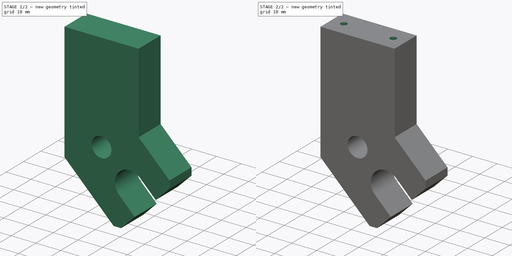
[diagram: build sequence overview — one tinted view per stage of 2, left to right]
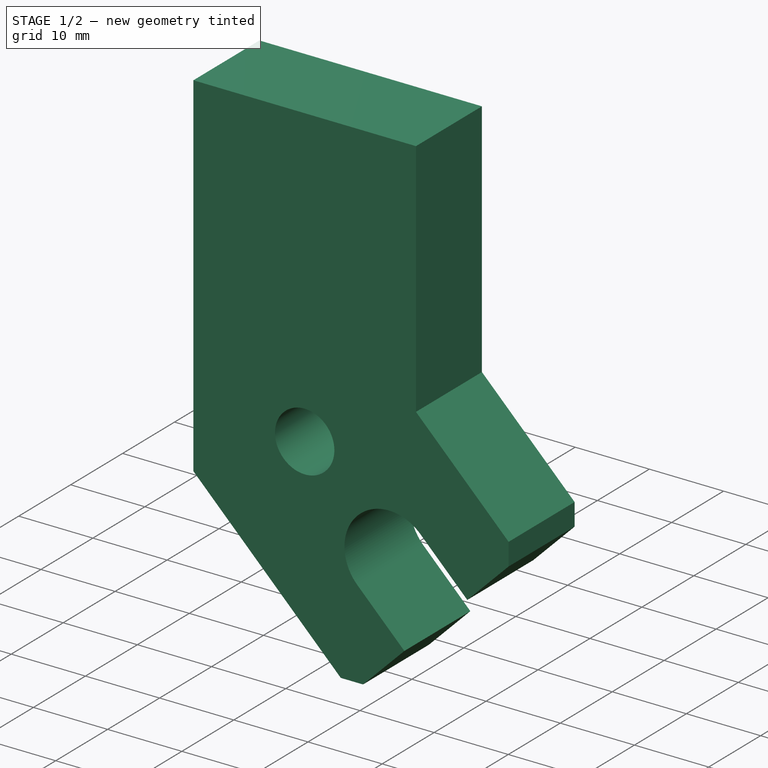
[diagram: stage 1 of 2 — iso view after this stage's code; geometry added in this stage tinted green]
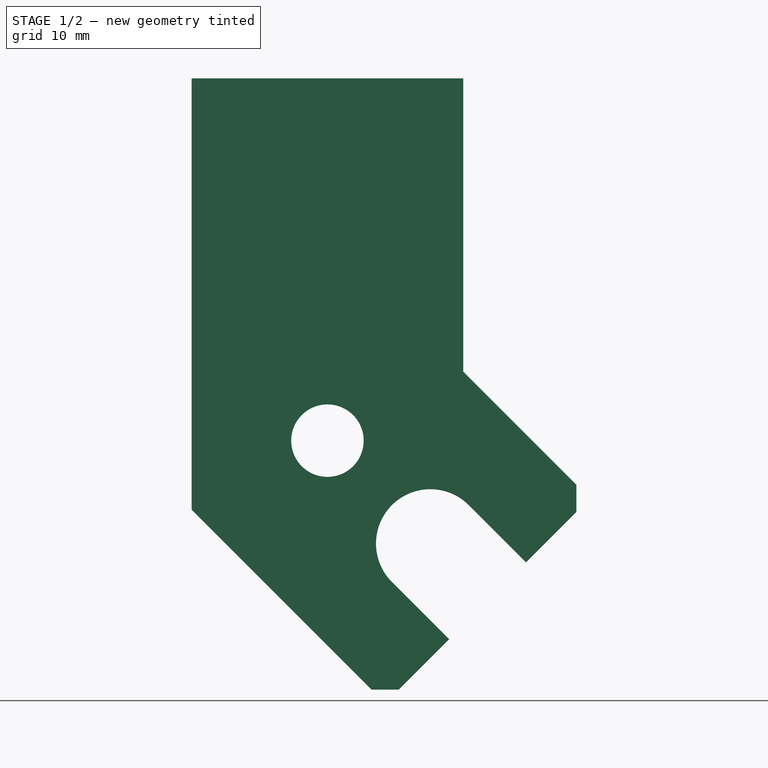
[diagram: stage 1 of 2 — front view after this stage's code; geometry added in this stage tinted green]
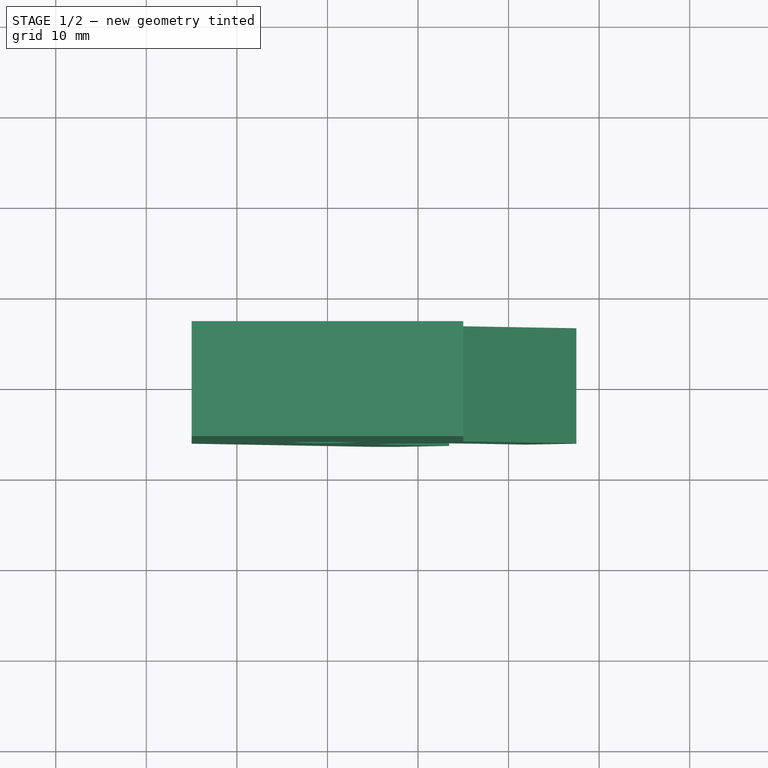
[diagram: stage 1 of 2 — top view after this stage's code; geometry added in this stage tinted green]
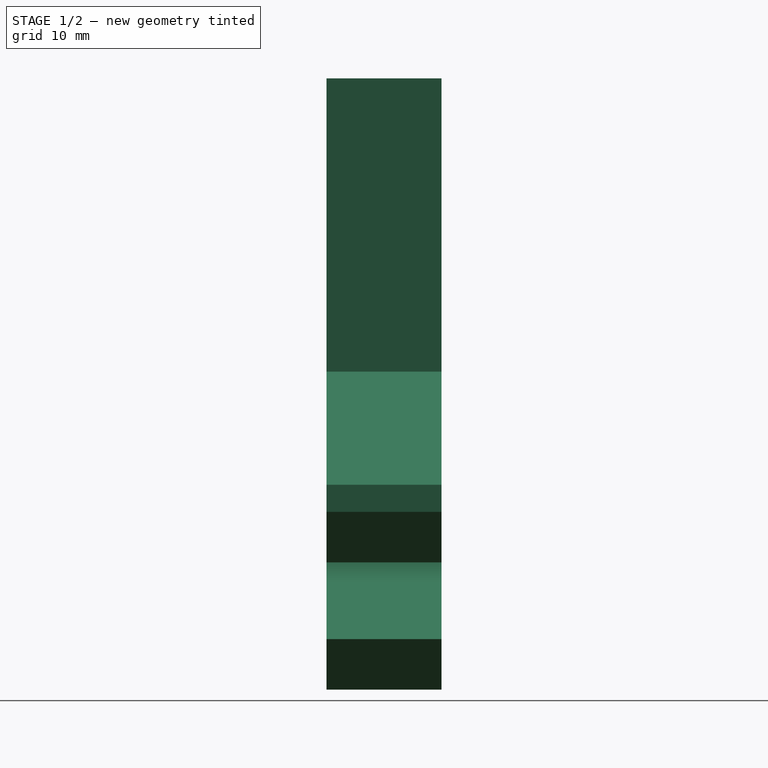
[diagram: stage 1 of 2 — right view after this stage's code; geometry added in this stage tinted green]
FCSTD DOCUMENT  (FreeCAD 0.21R33771 (Git))
Label: Alt Plate
License: All rights reserved
LicenseURL: http://en.wikipedia.org/wiki/All_rights_reserved
objects: PartDesign::CoordinateSystem×3, Sketcher::SketchObject×2, PartDesign::Pad×1, PartDesign::Hole×1, PartDesign::Body×1
note: 10 computed .brp shape members not serialized (recipe doc carries the construction recipe); baked Part::Feature solids carry a one-line shape summary decoded from their .brp

FEATURE [Sketcher::SketchObject] Sketch
  FullyConstrained = true
  MapMode = 5
  Placement = pos=(0,0,0) rot=(1,0,0;1.5708rad)
  Support = -> [XZ_Plane]
  sketch-geometry (19):
    g0: LineSegment StartX=-15 StartY=-7.62744 StartZ=0 EndX=-15 EndY=40 EndZ=0
    g1: LineSegment StartX=15 StartY=7.6274 StartZ=0 EndX=15 EndY=40 EndZ=0
    g2: LineSegment StartX=-15 StartY=40 StartZ=0 EndX=15 EndY=40 EndZ=0
    g3: Circle CenterX=0 CenterY=0 CenterZ=0 NormalX=0 NormalY=0 NormalZ=1 AngleXU=0 Radius=4
    g4: ArcOfCircle CenterX=11.363 CenterY=-11.363 CenterZ=0 NormalX=0 NormalY=0 NormalZ=1 AngleXU=0 Radius=6 StartAngle=0.785397 EndAngle=3.92699
    g5: LineSegment StartX=0 StartY=0 StartZ=0 EndX=17.6777 EndY=-17.6777 EndZ=0
    g6: LineSegment StartX=7.12034 StartY=-15.6056 StartZ=0 EndX=13.435 EndY=-21.9203 EndZ=0
    g7: LineSegment StartX=15.6056 StartY=-7.12035 StartZ=0 EndX=21.9203 EndY=-13.435 EndZ=0
    g8: Circle CenterX=0 CenterY=0 CenterZ=0 NormalX=0 NormalY=0 NormalZ=1 AngleXU=0 Radius=25
    g9: LineSegment StartX=13.435 StartY=-21.9203 StartZ=0 EndX=21.9203 EndY=-13.435 EndZ=0
    g10: LineSegment StartX=0 StartY=0 StartZ=0 EndX=-2.17889 EndY=-24.9049 EndZ=0
    g11: LineSegment StartX=0 StartY=0 StartZ=0 EndX=24.9049 EndY=2.17889 EndZ=0
    g12: LineSegment StartX=24.9049 StartY=2.17889 StartZ=0 EndX=-2.17889 EndY=-24.9049 EndZ=0
    g13: LineSegment StartX=15 StartY=7.6274 StartZ=0 EndX=27.4914 EndY=-4.86398 EndZ=0
    g14: LineSegment StartX=27.4914 StartY=-4.86398 StartZ=0 EndX=27.4914 EndY=-7.86398 EndZ=0
    g15: LineSegment StartX=27.4914 StartY=-7.86398 StartZ=0 EndX=21.9203 EndY=-13.435 EndZ=0
    g16: LineSegment StartX=13.435 StartY=-21.9203 StartZ=0 EndX=7.86394 EndY=-27.4914 EndZ=0
    g17: LineSegment StartX=7.86394 StartY=-27.4914 StartZ=0 EndX=4.86394 EndY=-27.4914 EndZ=0
    g18: LineSegment StartX=4.86394 StartY=-27.4914 StartZ=0 EndX=-15 EndY=-7.62744 EndZ=0
  constraints (51):
    c: Vertical(g0)
    c: Vertical(g1)
    c: Coincident(g2,g0)
    c: Diameter(g3) = 8
    c: Coincident(g1,g2)
    c: Diameter(g4) = 12
    c: Coincident(g3,g-1)
    c: DistanceX(g2,g2) = 30
    c: DistanceY(g3,g1) = 40
    c: Coincident(g5,g3)
    c: Tangent(g4,g6) = -1.5708
    c: Distance(g5) = 25
    c: Coincident(g8,g3)
    c: PointOnObject(g5,g8)
    c: Coincident(g9,g6)
    c: Coincident(g9,g7)
    c: Tangent(g9,g8)
    c: Symmetric(g0,g1,g-2)
    c: Parallel(g7,g6)
    c: Perpendicular(g7,g9)
    c: Tangent(g4,g7) = 1.5708
    c: PointOnObject(g4,g5)
    c: PointOnObject(g5,g9)
    c: Angle(g5,g-2) = 2.35619
    c: Coincident(g10,g3)
    c: Coincident(g11,g3)
    c: PointOnObject(g11,g8)
    c: Coincident(g12,g11)
    c: Coincident(g12,g10)
    c: PointOnObject(g4,g12)
    c: Coincident(g13,g1)
    c: Coincident(g14,g13)
    c: Vertical(g14)
    c: Coincident(g15,g14)
    c: Coincident(g15,g7)
    c: Coincident(g16,g6)
    c: Coincident(g17,g16)
    c: Horizontal(g17)
    c: Coincident(g18,g17)
    c: Coincident(g18,g0)
    c: Parallel(g18,g5)
    c: Parallel(g5,g13)
    c: Perpendicular(g5,g16)
    c: Perpendicular(g7,g15)
    c: Distance(g17) = 3
    c: Equal(g17,g14)
    c: Equal(g16,g15)
    c: Angle(g10,g11) = 1.74533
    c: Symmetric(g11,g10,g5)
    c: Distance(g13,g7) = 10
    c: Distance(g4,g3) = 16.0697
FEATURE [PartDesign::Pad] Pad
  Direction = (0,-1,-2e-16)
  Length = 12.7
  Length2 = 10
  Midplane = true
  Placement = pos=(0,0,0) rot=(1,0,0;1.5708rad)
  Profile = -> Sketch
  ReferenceAxis = -> Sketch [N_Axis]
  Type = 0
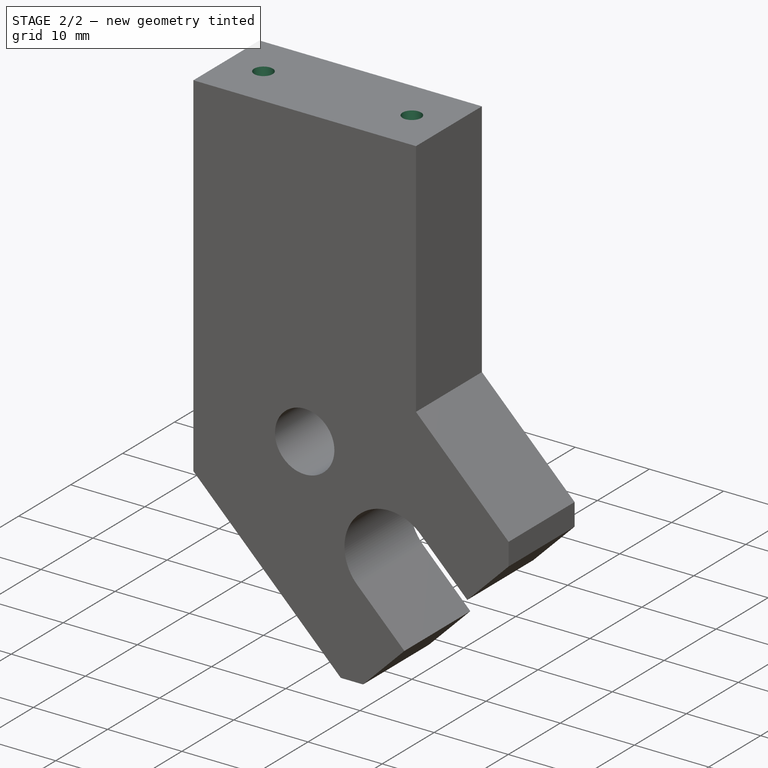
[diagram: stage 2 of 2 — iso view after this stage's code; geometry added in this stage tinted green]
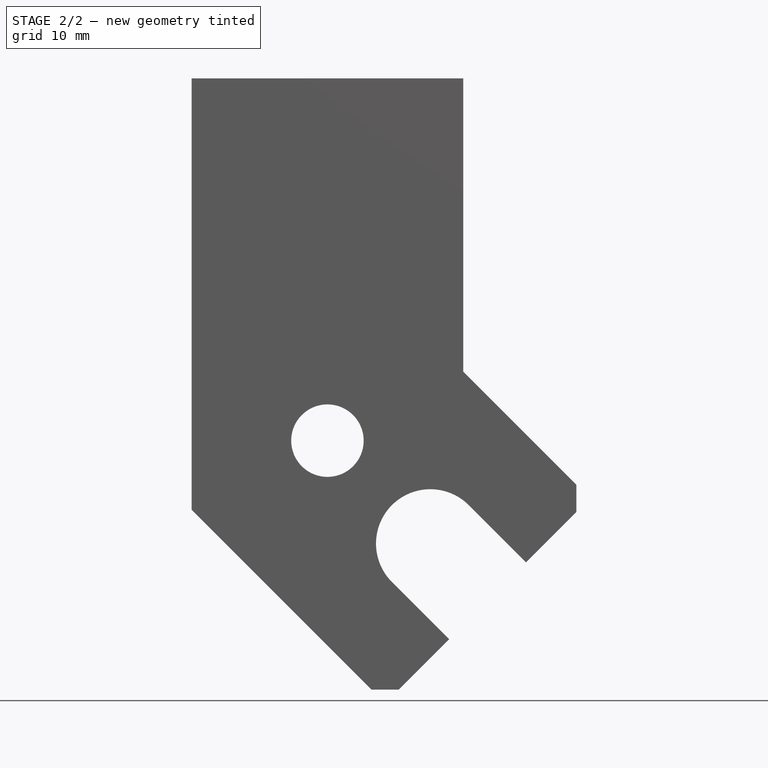
[diagram: stage 2 of 2 — front view after this stage's code; geometry added in this stage tinted green]
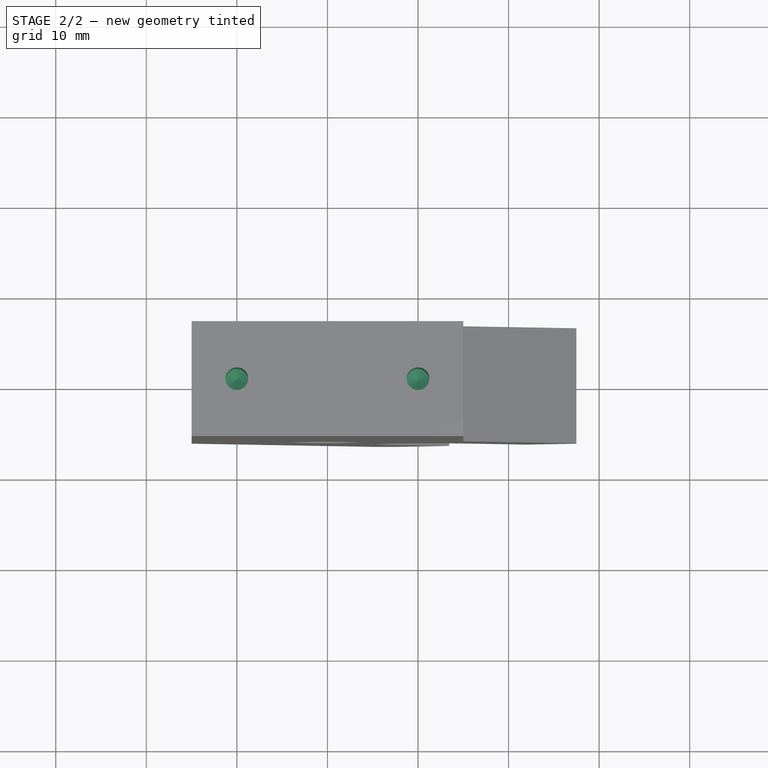
[diagram: stage 2 of 2 — top view after this stage's code; geometry added in this stage tinted green]
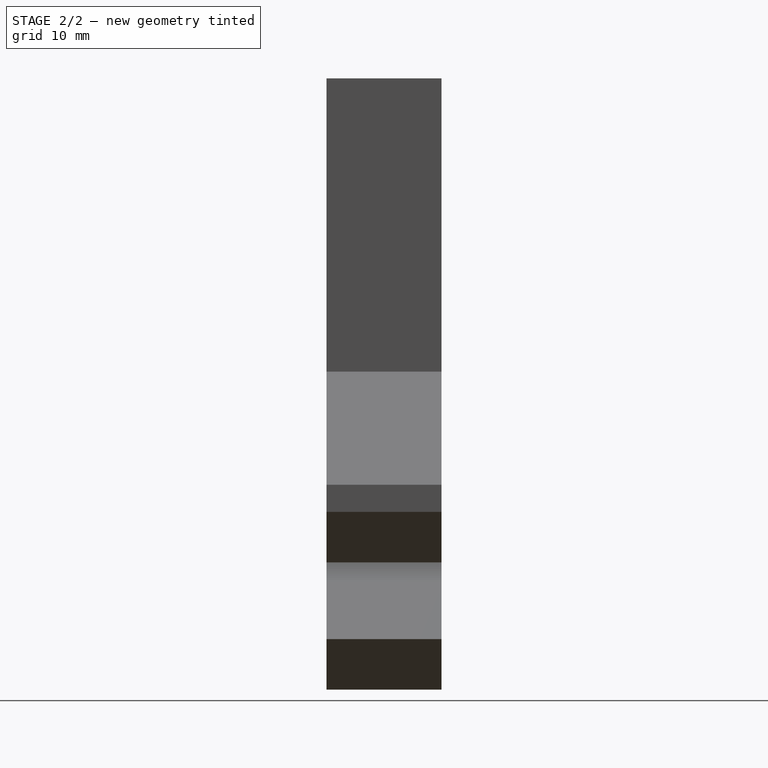
[diagram: stage 2 of 2 — right view after this stage's code; geometry added in this stage tinted green]
FEATURE [Sketcher::SketchObject] Sketch001
  FullyConstrained = true
  MapMode = 5
  Placement = pos=(0,-8.9e-15,40) rot=(0,0,1;3.14159rad)
  Support = -> [Pad]
  sketch-geometry (2):
    g0: Circle CenterX=-10 CenterY=0 CenterZ=0 NormalX=0 NormalY=0 NormalZ=1 AngleXU=0 Radius=1.5
    g1: Circle CenterX=10 CenterY=0 CenterZ=0 NormalX=0 NormalY=0 NormalZ=1 AngleXU=0 Radius=1.5
  constraints (5):
    c: PointOnObject(g0,g-1)
    c: Symmetric(g0,g1,g-1)
    c: Diameter(g1) = 3
    c: Equal(g1,g0)
    c: DistanceX(g0,g1) = 20
FEATURE [PartDesign::Hole] Hole
  BaseFeature = -> Pad
  CustomThreadClearance = 0
  Depth = 10
  DepthType = 0
  Diameter = 2.5
  DrillForDepth = false
  DrillPoint = 1
  DrillPointAngle = 118
  HoleCutCountersinkAngle = 90
  HoleCutCustomValues = false
  HoleCutDepth = 0
  HoleCutDiameter = 6.1
  HoleCutType = 0
  ModelThread = false
  Placement = pos=(0,0,0) rot=(1,0,0;1.5708rad)
  Profile = -> Sketch001
  Tapered = false
  TaperedAngle = 90
  ThreadClass = 0
  ThreadDepth = 10
  ThreadDepthType = 0
  ThreadDirection = 0
  ThreadFit = 0
  ThreadSize = 9
  ThreadType = 1
  Threaded = true
  UseCustomThreadClearance = false
FEATURE [PartDesign::CoordinateSystem] Local_CS
  AttacherType = Attacher::AttachEngine3D
  MapMode = 11
  Placement = pos=(0,6.35,1.4e-15) rot=(0.57735,-0.57735,0.57735;2.0944rad)
  Support = -> [Hole]
FEATURE [PartDesign::CoordinateSystem] Local_CS001
  AttacherType = Attacher::AttachEngine3D
  MapMode = 11
  Placement = pos=(0,-6.35,-1.4e-15) rot=(0.57735,-0.57735,0.57735;2.0944rad)
  Support = -> [Hole]
FEATURE [PartDesign::CoordinateSystem] Local_CS002
  AttacherType = Attacher::AttachEngine3D
  MapMode = 11
  Placement = pos=(-10,-8.9e-15,40) rot=(0,0,1;1.5708rad)
  Support = -> [Hole]
FEATURE [PartDesign::Body] Body  label="Alt Plate"
  Group = -> [Sketch,Pad,Sketch001,Hole,Local_CS,Local_CS001,Local_CS002]
  Origin = -> Origin
  Tip = -> Hole
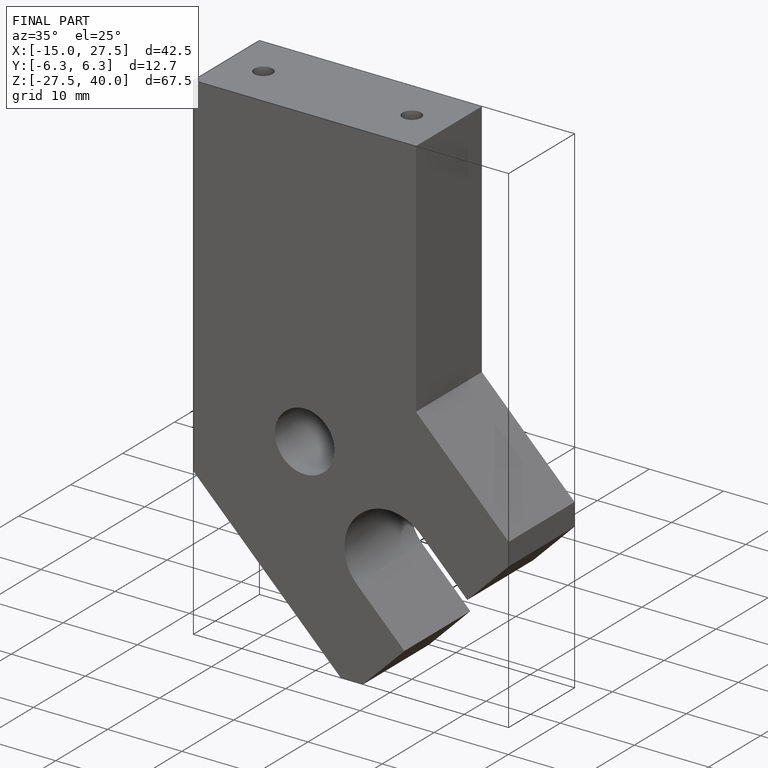
[diagram: finished part — iso view with bounding-box wireframe]
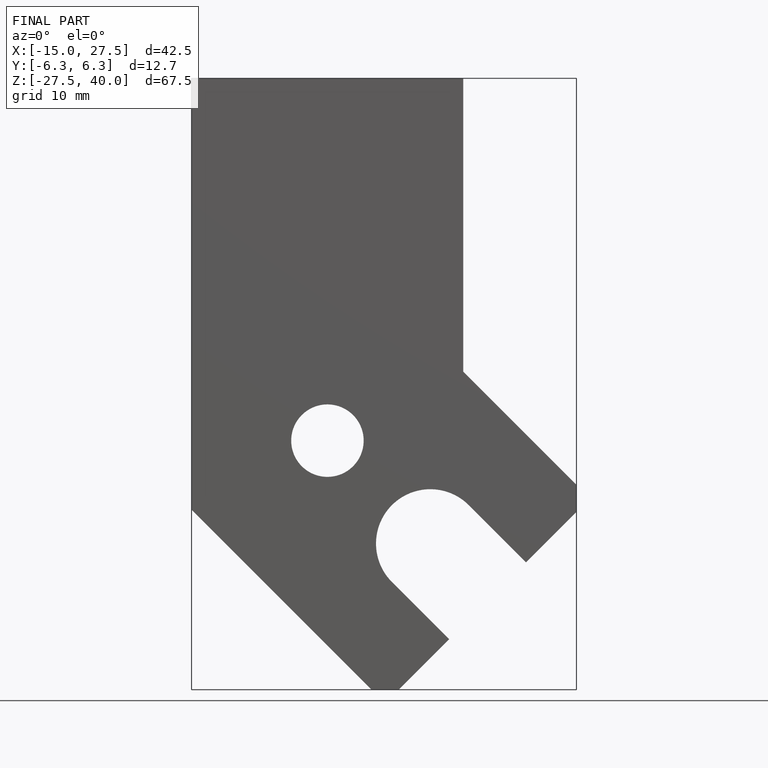
[diagram: finished part — front view with bounding-box wireframe]
